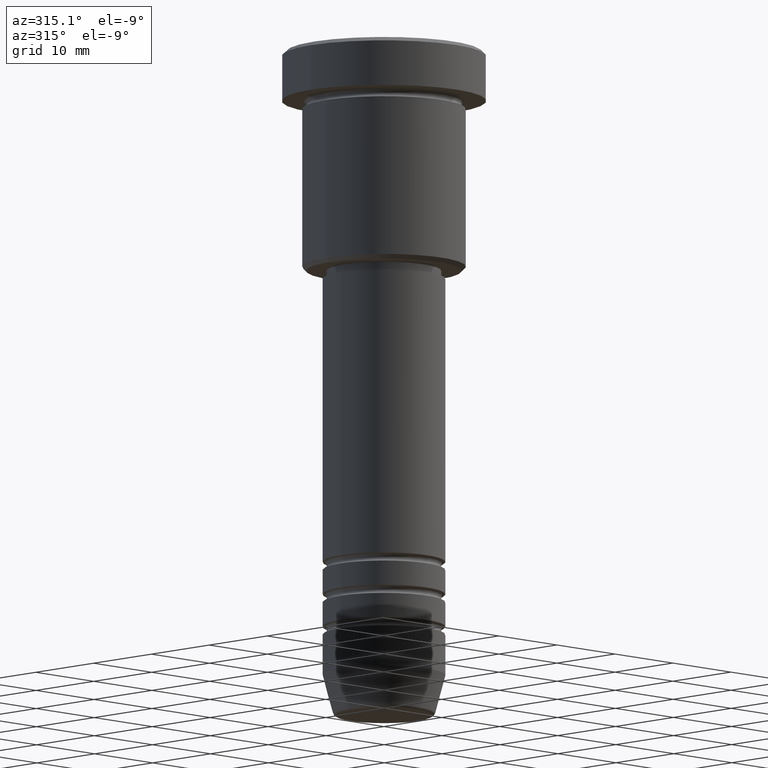
[diagram: clean part render]
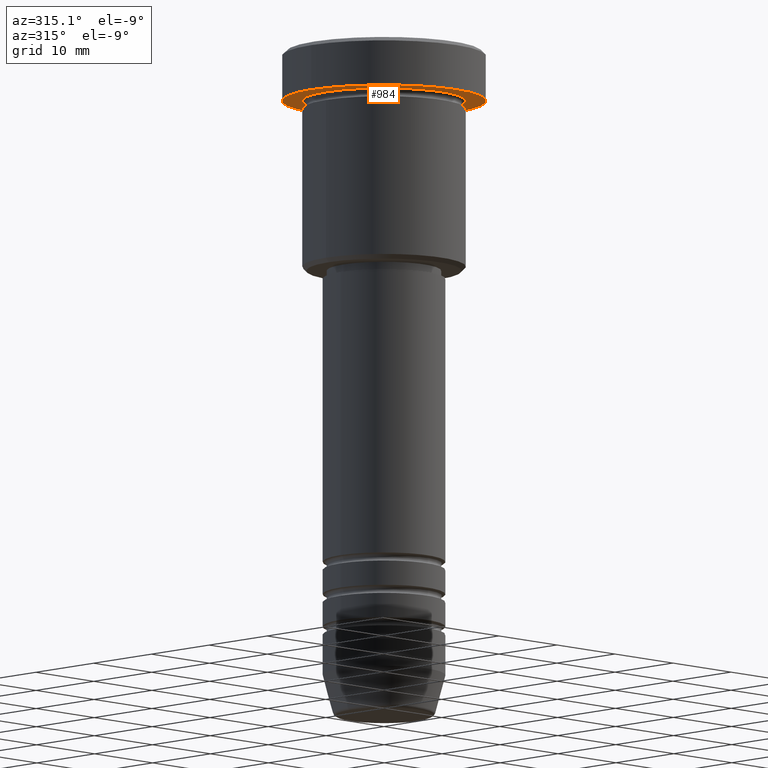
[diagram: same view with one face highlighted and labeled with its STEP entity id]
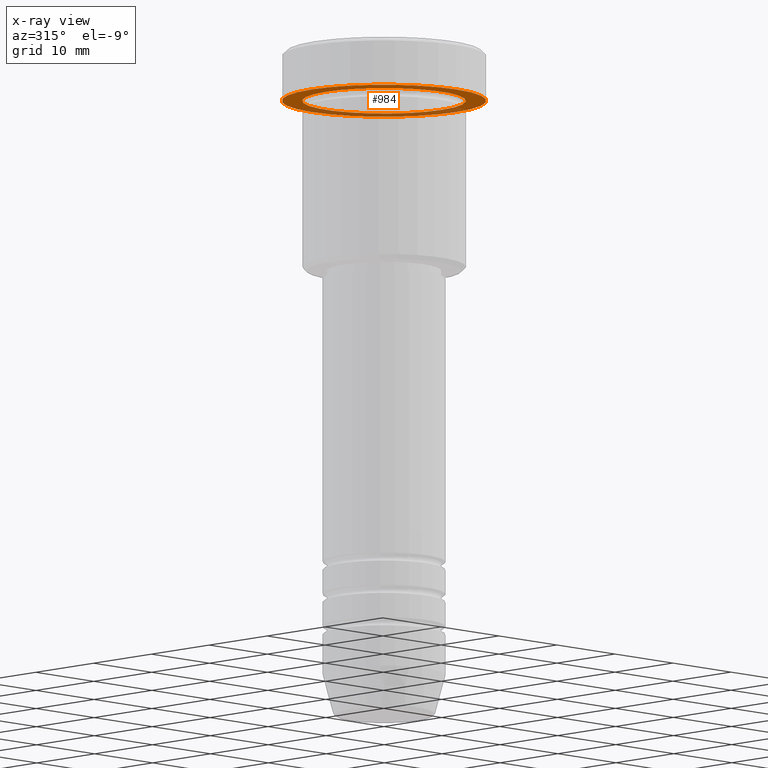
[diagram: x-ray of the same camera — body ghosted, the highlighted face saturated]
A machine part, auxiliary view. The second image highlights one B-rep face of the part: STEP entity #984.
The next image is the same camera in x-ray: the body ghosted, the highlighted face saturated — about 32% of this face is hidden behind the body in this view.
In plain terms, the highlighted planar face has unit normal (0, 0, -1).
Its self-contained STEP definition (entity closure, byte-faithful):
#19 = DIRECTION ( 'NONE',  ( -0.000000000000000000, -0.000000000000000000, 1.000000000000000000 ) ) ;
#29 = CIRCLE ( 'NONE', #407, 10.00000000000000000 ) ;
#30 = AXIS2_PLACEMENT_3D ( 'NONE', #178, #19, #911 ) ;
#67 = CIRCLE ( 'NONE', #932, 10.00000000000000000 ) ;
#104 = CIRCLE ( 'NONE', #30, 12.50000000000000000 ) ;
#164 = EDGE_CURVE ( 'NONE', #524, #235, #67, .T. ) ;
#178 = CARTESIAN_POINT ( 'NONE',  ( 0.000000000000000000, 0.000000000000000000, -5.999999999999996447 ) ) ;
#235 = VERTEX_POINT ( 'NONE', #546 ) ;
#241 = DIRECTION ( 'NONE',  ( 0.000000000000000000, 0.000000000000000000, -1.000000000000000000 ) ) ;
#248 = FACE_BOUND ( 'NONE', #508, .T. ) ;
#249 = DIRECTION ( 'NONE',  ( -1.000000000000000000, 0.000000000000000000, 0.000000000000000000 ) ) ;
#288 = DIRECTION ( 'NONE',  ( 1.000000000000000000, 0.000000000000000000, 0.000000000000000000 ) ) ;
#313 = CARTESIAN_POINT ( 'NONE',  ( 0.000000000000000000, 12.50000000000000000, -5.999999999999996447 ) ) ;
#315 = CARTESIAN_POINT ( 'NONE',  ( -12.50000000000000000, 1.530808498934191521E-15, -5.999999999999996447 ) ) ;
#324 = ORIENTED_EDGE ( 'NONE', *, *, #484, .F. ) ;
#403 = ORIENTED_EDGE ( 'NONE', *, *, #479, .T. ) ;
#407 = AXIS2_PLACEMENT_3D ( 'NONE', #571, #1158, #249 ) ;
#409 = CARTESIAN_POINT ( 'NONE',  ( 12.50000000000000000, 0.000000000000000000, -5.999999999999996447 ) ) ;
#425 = ORIENTED_EDGE ( 'NONE', *, *, #164, .T. ) ;
#439 = PLANE ( 'NONE',  #819 ) ;
#479 = EDGE_CURVE ( 'NONE', #235, #524, #29, .T. ) ;
#484 = EDGE_CURVE ( 'NONE', #814, #1075, #732, .T. ) ;
#497 = CARTESIAN_POINT ( 'NONE',  ( -10.00000000000000000, 0.000000000000000000, -5.999999999999996447 ) ) ;
#508 = EDGE_LOOP ( 'NONE', ( #425, #403 ) ) ;
#524 = VERTEX_POINT ( 'NONE', #497 ) ;
#546 = CARTESIAN_POINT ( 'NONE',  ( 10.00000000000000000, 1.224646799147353256E-15, -5.999999999999996447 ) ) ;
#571 = CARTESIAN_POINT ( 'NONE',  ( 0.000000000000000000, 0.000000000000000000, -5.999999999999996447 ) ) ;
#591 = DIRECTION ( 'NONE',  ( -0.000000000000000000, -0.000000000000000000, 1.000000000000000000 ) ) ;
#614 = DIRECTION ( 'NONE',  ( -1.000000000000000000, 0.000000000000000000, -0.000000000000000000 ) ) ;
#622 = CARTESIAN_POINT ( 'NONE',  ( 0.000000000000000000, 0.000000000000000000, -5.999999999999996447 ) ) ;
#689 = EDGE_LOOP ( 'NONE', ( #324, #1183 ) ) ;
#732 = CIRCLE ( 'NONE', #857, 12.50000000000000000 ) ;
#799 = CARTESIAN_POINT ( 'NONE',  ( 0.000000000000000000, 0.000000000000000000, -5.999999999999996447 ) ) ;
#810 = DIRECTION ( 'NONE',  ( -0.000000000000000000, -0.000000000000000000, 1.000000000000000000 ) ) ;
#814 = VERTEX_POINT ( 'NONE', #409 ) ;
#819 = AXIS2_PLACEMENT_3D ( 'NONE', #313, #241, #614 ) ;
#857 = AXIS2_PLACEMENT_3D ( 'NONE', #622, #810, #288 ) ;
#884 = EDGE_CURVE ( 'NONE', #1075, #814, #104, .T. ) ;
#911 = DIRECTION ( 'NONE',  ( 1.000000000000000000, 0.000000000000000000, 0.000000000000000000 ) ) ;
#932 = AXIS2_PLACEMENT_3D ( 'NONE', #799, #591, #1058 ) ;
#957 = FACE_OUTER_BOUND ( 'NONE', #689, .T. ) ;
#984 = ADVANCED_FACE ( 'NONE', ( #248, #957 ), #439, .T. ) ;
#1058 = DIRECTION ( 'NONE',  ( -1.000000000000000000, 0.000000000000000000, 0.000000000000000000 ) ) ;
#1075 = VERTEX_POINT ( 'NONE', #315 ) ;
#1158 = DIRECTION ( 'NONE',  ( -0.000000000000000000, -0.000000000000000000, 1.000000000000000000 ) ) ;
#1183 = ORIENTED_EDGE ( 'NONE', *, *, #884, .F. ) ;